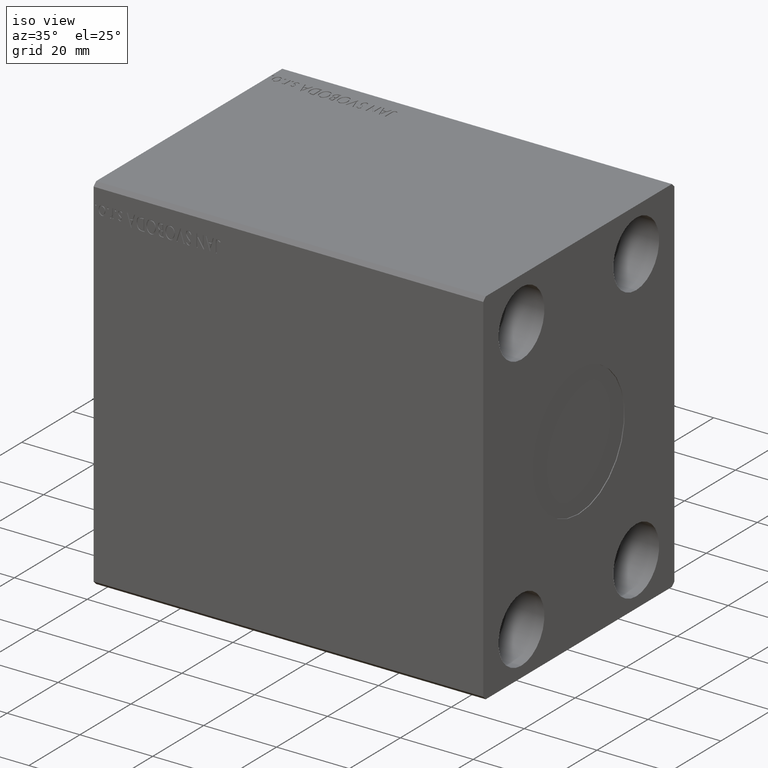
[diagram: clean part render]
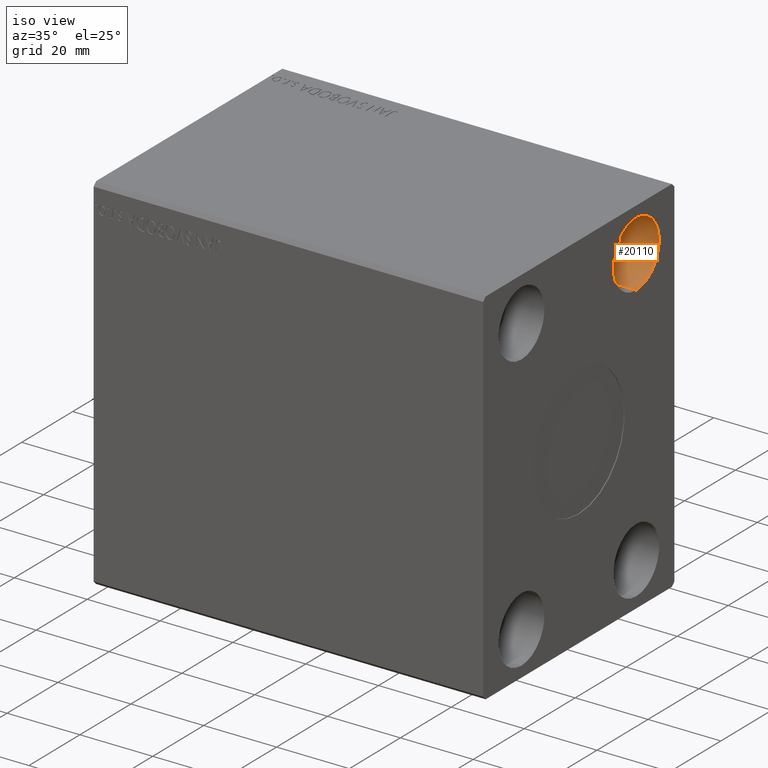
[diagram: same view with one face highlighted and labeled with its STEP entity id]
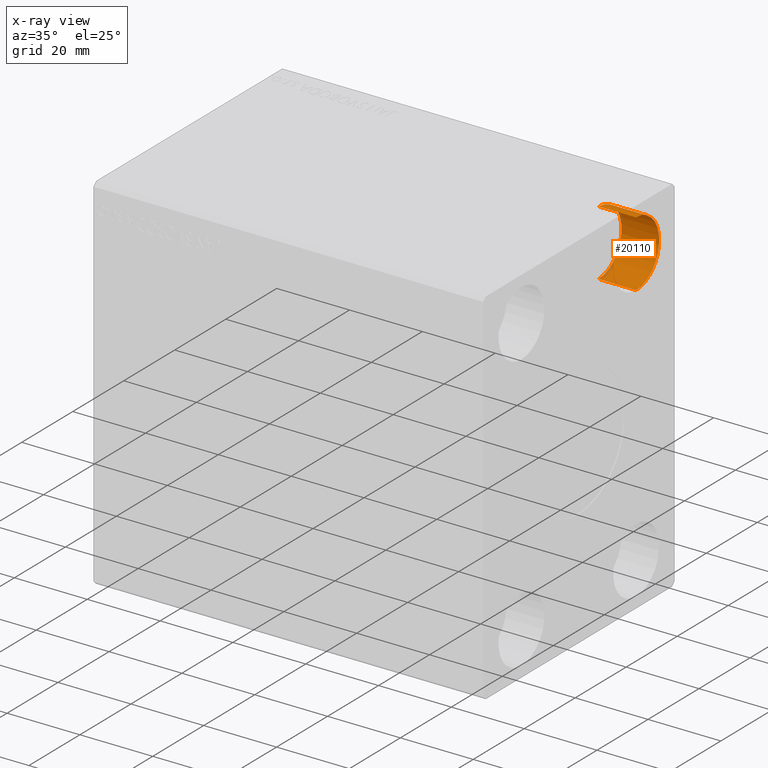
[diagram: x-ray of the same camera — body ghosted, the highlighted face saturated]
A machine part, iso view. The second image highlights one B-rep face of the part: STEP entity #20110.
The next image is the same camera in x-ray: the body ghosted, the highlighted face saturated — about 3% of this face is hidden behind the body in this view.
In plain terms, the highlighted cylindrical surface (partial cylindrical patch) has radius 9 mm, axis along (1, -0, -0).
Its self-contained STEP definition (entity closure, byte-faithful):
#1329 = ORIENTED_EDGE ( 'NONE', *, *, #21451, .F. ) ;
#1465 = VERTEX_POINT ( 'NONE', #18111 ) ;
#2102 = VECTOR ( 'NONE', #30537, 1000.000000000000000 ) ;
#4544 = EDGE_LOOP ( 'NONE', ( #35034, #1329, #32420, #40647 ) ) ;
#5726 = CARTESIAN_POINT ( 'NONE',  ( 96.66999999999998749, 22.50000000000000000, 47.00000000000000000 ) ) ;
#5831 = CYLINDRICAL_SURFACE ( 'NONE', #21789, 9.000000000000001776 ) ;
#9523 = DIRECTION ( 'NONE',  ( 1.000000000000000000, -0.000000000000000000, -0.000000000000000000 ) ) ;
#11546 = LINE ( 'NONE', #5726, #17488 ) ;
#12473 = CARTESIAN_POINT ( 'NONE',  ( 96.66999999999998749, 22.50000000000000000, 38.00000000000000000 ) ) ;
#12898 = DIRECTION ( 'NONE',  ( 0.000000000000000000, 0.000000000000000000, -1.000000000000000000 ) ) ;
#13735 = VERTEX_POINT ( 'NONE', #21510 ) ;
#17442 = LINE ( 'NONE', #33999, #2102 ) ;
#17488 = VECTOR ( 'NONE', #31289, 1000.000000000000000 ) ;
#17676 = CARTESIAN_POINT ( 'NONE',  ( 107.0000000000000000, 22.50000000000000000, 28.99999999999999645 ) ) ;
#17924 = CARTESIAN_POINT ( 'NONE',  ( 96.66999999999998749, 22.50000000000000000, 38.00000000000000000 ) ) ;
#18111 = CARTESIAN_POINT ( 'NONE',  ( 96.66999999999998749, 22.50000000000000000, 28.99999999999999645 ) ) ;
#18717 = DIRECTION ( 'NONE',  ( 1.000000000000000000, -0.000000000000000000, -0.000000000000000000 ) ) ;
#20110 = ADVANCED_FACE ( 'NONE', ( #32451 ), #5831, .F. ) ;
#20610 = AXIS2_PLACEMENT_3D ( 'NONE', #21993, #9523, #41541 ) ;
#21356 = DIRECTION ( 'NONE',  ( 1.000000000000000000, -0.000000000000000000, -0.000000000000000000 ) ) ;
#21451 = EDGE_CURVE ( 'NONE', #1465, #13735, #25817, .T. ) ;
#21510 = CARTESIAN_POINT ( 'NONE',  ( 96.66999999999998749, 22.50000000000000000, 47.00000000000000000 ) ) ;
#21789 = AXIS2_PLACEMENT_3D ( 'NONE', #12473, #18717, #12898 ) ;
#21993 = CARTESIAN_POINT ( 'NONE',  ( 107.0000000000000000, 22.50000000000000000, 38.00000000000000000 ) ) ;
#25817 = CIRCLE ( 'NONE', #34163, 9.000000000000001776 ) ;
#27721 = CARTESIAN_POINT ( 'NONE',  ( 107.0000000000000000, 22.50000000000000000, 47.00000000000000000 ) ) ;
#28476 = VERTEX_POINT ( 'NONE', #17676 ) ;
#30537 = DIRECTION ( 'NONE',  ( 1.000000000000000000, -0.000000000000000000, -0.000000000000000000 ) ) ;
#31289 = DIRECTION ( 'NONE',  ( 1.000000000000000000, -0.000000000000000000, -0.000000000000000000 ) ) ;
#32420 = ORIENTED_EDGE ( 'NONE', *, *, #33618, .T. ) ;
#32451 = FACE_OUTER_BOUND ( 'NONE', #4544, .T. ) ;
#33564 = EDGE_CURVE ( 'NONE', #28476, #38461, #35710, .T. ) ;
#33618 = EDGE_CURVE ( 'NONE', #1465, #28476, #17442, .T. ) ;
#33999 = CARTESIAN_POINT ( 'NONE',  ( 96.66999999999998749, 22.50000000000000000, 28.99999999999999645 ) ) ;
#34163 = AXIS2_PLACEMENT_3D ( 'NONE', #17924, #21356, #34472 ) ;
#34472 = DIRECTION ( 'NONE',  ( 0.000000000000000000, 0.000000000000000000, -1.000000000000000000 ) ) ;
#35034 = ORIENTED_EDGE ( 'NONE', *, *, #38853, .F. ) ;
#35710 = CIRCLE ( 'NONE', #20610, 9.000000000000001776 ) ;
#38461 = VERTEX_POINT ( 'NONE', #27721 ) ;
#38853 = EDGE_CURVE ( 'NONE', #13735, #38461, #11546, .T. ) ;
#40647 = ORIENTED_EDGE ( 'NONE', *, *, #33564, .T. ) ;
#41541 = DIRECTION ( 'NONE',  ( 0.000000000000000000, 0.000000000000000000, -1.000000000000000000 ) ) ;